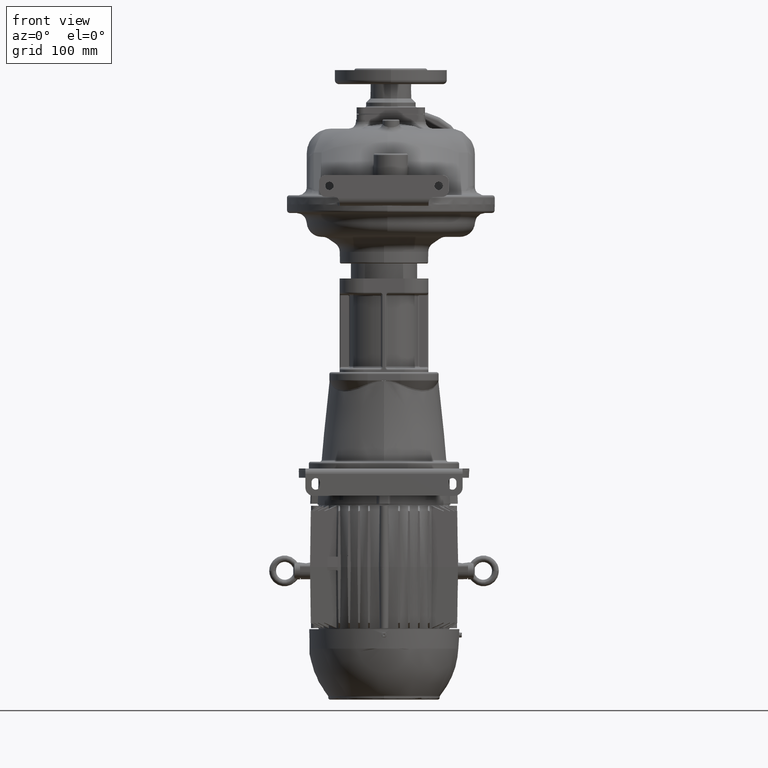
[diagram: clean part render]
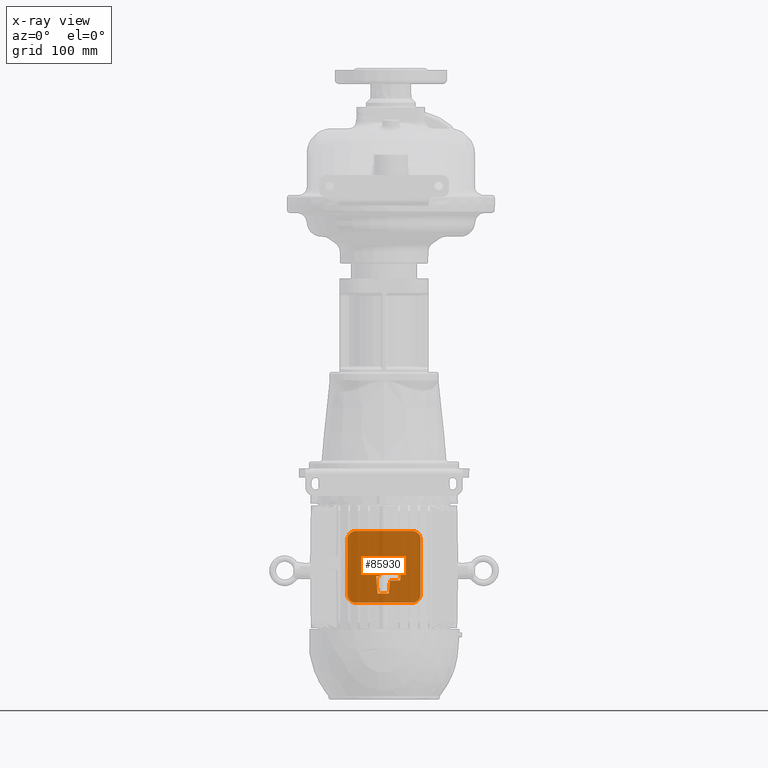
[diagram: x-ray — body ghosted, one internal face saturated and labeled with its STEP entity id]
A machine part, front view, then the same camera in x-ray: the body is ghosted and one INTERNAL B-rep face — a face not visible from any outside direction — is saturated and labeled: STEP entity #85930.
In plain terms, the highlighted planar face has unit normal (0, -1, 0).
Its self-contained STEP definition (entity closure, byte-faithful):
#18251=CARTESIAN_POINT('',(-4.15E1,1.12E2,-4.9355E2));
#18252=DIRECTION('',(0.E0,-1.E0,0.E0));
#18253=DIRECTION('',(0.E0,0.E0,1.E0));
#18254=AXIS2_PLACEMENT_3D('',#18251,#18252,#18253);
#18256=CARTESIAN_POINT('',(4.15E1,1.12E2,-4.9355E2));
#18257=DIRECTION('',(0.E0,-1.E0,0.E0));
#18258=DIRECTION('',(1.E0,0.E0,0.E0));
#18259=AXIS2_PLACEMENT_3D('',#18256,#18257,#18258);
#18261=CARTESIAN_POINT('',(4.15E1,1.12E2,-5.7455E2));
#18262=DIRECTION('',(0.E0,-1.E0,0.E0));
#18263=DIRECTION('',(6.750155989721E-14,0.E0,-1.E0));
#18264=AXIS2_PLACEMENT_3D('',#18261,#18262,#18263);
#18266=CARTESIAN_POINT('',(-4.15E1,1.12E2,-5.7455E2));
#18267=DIRECTION('',(0.E0,-1.E0,0.E0));
#18268=DIRECTION('',(-1.E0,0.E0,6.631732200428E-14));
#18269=AXIS2_PLACEMENT_3D('',#18266,#18267,#18268);
#18271=DIRECTION('',(1.E0,0.E0,-2.320139545340E-14));
#18272=VECTOR('',#18271,2.449999999999E1);
#18273=CARTESIAN_POINT('',(1.451595131531E-11,1.12E2,-5.3405E2));
#18274=LINE('',#18273,#18272);
#18275=CARTESIAN_POINT('',(-1.448838364315E-14,1.12E2,-5.4005E2));
#18276=DIRECTION('',(0.E0,1.E0,0.E0));
#18277=DIRECTION('',(-9.946737670064E-1,0.E0,1.030732614664E-1));
#18278=AXIS2_PLACEMENT_3D('',#18275,#18276,#18277);
#18280=DIRECTION('',(1.030732614664E-1,0.E0,9.946737670064E-1));
#18281=VECTOR('',#18280,8.179011117119E0);
#18282=CARTESIAN_POINT('',(-6.811079953450E0,1.12E2,-5.475670082295E2));
#18283=LINE('',#18282,#18281);
#18284=DIRECTION('',(1.E0,0.E0,0.E0));
#18285=VECTOR('',#18284,4.764166065420E0);
#18286=CARTESIAN_POINT('',(-1.157524601887E1,1.12E2,-5.475670082295E2));
#18287=LINE('',#18286,#18285);
#18288=DIRECTION('',(-8.715574274765E-2,0.E0,9.961946980917E-1));
#18289=VECTOR('',#18288,2.558033265923E1);
#18290=CARTESIAN_POINT('',(-9.345773126223E0,1.12E2,-5.7305E2));
#18291=LINE('',#18290,#18289);
#18292=DIRECTION('',(1.E0,0.E0,0.E0));
#18293=VECTOR('',#18292,1.634577312622E1);
#18294=CARTESIAN_POINT('',(-9.345773126223E0,1.12E2,-5.7305E2));
#18295=LINE('',#18294,#18293);
#18296=DIRECTION('',(-8.715574274766E-2,0.E0,-9.961946980917E-1));
#18297=VECTOR('',#18296,1.907257691332E1);
#18298=CARTESIAN_POINT('',(8.662284606993E0,1.12E2,-5.5405E2));
#18299=LINE('',#18298,#18297);
#18300=DIRECTION('',(-1.E0,0.E0,0.E0));
#18301=VECTOR('',#18300,1.496449653484E1);
#18302=CARTESIAN_POINT('',(2.362678114183E1,1.12E2,-5.5405E2));
#18303=LINE('',#18302,#18301);
#18304=DIRECTION('',(-4.361938736534E-2,0.E0,-9.990482215819E-1));
#18305=VECTOR('',#18304,2.001905370327E1);
#18306=CARTESIAN_POINT('',(2.45E1,1.12E2,-5.3405E2));
#18307=LINE('',#18306,#18305);
#22573=DIRECTION('',(0.E0,0.E0,-1.E0));
#22574=VECTOR('',#22573,8.1E1);
#22575=CARTESIAN_POINT('',(5.35E1,1.12E2,-4.9355E2));
#22576=LINE('',#22575,#22574);
#22594=DIRECTION('',(-1.E0,0.E0,0.E0));
#22595=VECTOR('',#22594,8.3E1);
#22596=CARTESIAN_POINT('',(4.15E1,1.12E2,-5.8655E2));
#22597=LINE('',#22596,#22595);
#22615=DIRECTION('',(0.E0,0.E0,1.E0));
#22616=VECTOR('',#22615,8.1E1);
#22617=CARTESIAN_POINT('',(-5.35E1,1.12E2,-5.7455E2));
#22618=LINE('',#22617,#22616);
#22623=DIRECTION('',(1.E0,0.E0,0.E0));
#22624=VECTOR('',#22623,8.3E1);
#22625=CARTESIAN_POINT('',(-4.15E1,1.12E2,-4.8155E2));
#22626=LINE('',#22625,#22624);
#54516=CARTESIAN_POINT('',(-4.15E1,1.12E2,-4.8155E2));
#54517=CARTESIAN_POINT('',(4.15E1,1.12E2,-4.8155E2));
#54518=VERTEX_POINT('',#54516);
#54519=VERTEX_POINT('',#54517);
#54520=CARTESIAN_POINT('',(-5.35E1,1.12E2,-4.9355E2));
#54521=VERTEX_POINT('',#54520);
#54522=CARTESIAN_POINT('',(-5.35E1,1.12E2,-5.7455E2));
#54523=VERTEX_POINT('',#54522);
#54524=CARTESIAN_POINT('',(-4.15E1,1.12E2,-5.8655E2));
#54525=VERTEX_POINT('',#54524);
#54526=CARTESIAN_POINT('',(4.15E1,1.12E2,-5.8655E2));
#54527=CARTESIAN_POINT('',(5.35E1,1.12E2,-5.7455E2));
#54528=VERTEX_POINT('',#54526);
#54529=VERTEX_POINT('',#54527);
#54530=CARTESIAN_POINT('',(5.35E1,1.12E2,-4.9355E2));
#54531=VERTEX_POINT('',#54530);
#60045=CARTESIAN_POINT('',(1.451595131531E-11,1.12E2,-5.3405E2));
#60046=CARTESIAN_POINT('',(2.45E1,1.12E2,-5.3405E2));
#60047=VERTEX_POINT('',#60045);
#60048=VERTEX_POINT('',#60046);
#60049=CARTESIAN_POINT('',(-6.811079953450E0,1.12E2,-5.475670082295E2));
#60050=CARTESIAN_POINT('',(-5.968042602038E0,1.12E2,-5.394315604312E2));
#60051=VERTEX_POINT('',#60049);
#60052=VERTEX_POINT('',#60050);
#60053=CARTESIAN_POINT('',(2.362678114183E1,1.12E2,-5.5405E2));
#60054=VERTEX_POINT('',#60053);
#60055=CARTESIAN_POINT('',(-9.345773126223E0,1.12E2,-5.7305E2));
#60056=CARTESIAN_POINT('',(7.E0,1.12E2,-5.7305E2));
#60057=VERTEX_POINT('',#60055);
#60058=VERTEX_POINT('',#60056);
#60059=CARTESIAN_POINT('',(8.662284606993E0,1.12E2,-5.5405E2));
#60060=VERTEX_POINT('',#60059);
#60061=CARTESIAN_POINT('',(-1.157524601887E1,1.12E2,-5.475670082295E2));
#60062=VERTEX_POINT('',#60061);
#85888=CARTESIAN_POINT('',(-4.15E1,1.12E2,-4.9355E2));
#85889=DIRECTION('',(0.E0,-1.E0,0.E0));
#85890=DIRECTION('',(1.E0,0.E0,0.E0));
#85891=AXIS2_PLACEMENT_3D('',#85888,#85889,#85890);
#85892=PLANE('',#85891);
#85894=ORIENTED_EDGE('',*,*,#85893,.F.);
#85896=ORIENTED_EDGE('',*,*,#85895,.T.);
#85898=ORIENTED_EDGE('',*,*,#85897,.F.);
#85900=ORIENTED_EDGE('',*,*,#85899,.T.);
#85902=ORIENTED_EDGE('',*,*,#85901,.F.);
#85904=ORIENTED_EDGE('',*,*,#85903,.T.);
#85906=ORIENTED_EDGE('',*,*,#85905,.F.);
#85908=ORIENTED_EDGE('',*,*,#85907,.T.);
#85909=EDGE_LOOP('',(#85894,#85896,#85898,#85900,#85902,#85904,#85906,#85908));
#85910=FACE_OUTER_BOUND('',#85909,.F.);
#85911=ORIENTED_EDGE('',*,*,#85864,.F.);
#85913=ORIENTED_EDGE('',*,*,#85912,.F.);
#85915=ORIENTED_EDGE('',*,*,#85914,.F.);
#85917=ORIENTED_EDGE('',*,*,#85916,.F.);
#85919=ORIENTED_EDGE('',*,*,#85918,.F.);
#85921=ORIENTED_EDGE('',*,*,#85920,.T.);
#85923=ORIENTED_EDGE('',*,*,#85922,.F.);
#85925=ORIENTED_EDGE('',*,*,#85924,.F.);
#85927=ORIENTED_EDGE('',*,*,#85926,.F.);
#85928=EDGE_LOOP('',(#85911,#85913,#85915,#85917,#85919,#85921,#85923,#85925,
#85927));
#85929=FACE_BOUND('',#85928,.F.);
#18255=CIRCLE('',#18254,1.2E1);
#18260=CIRCLE('',#18259,1.2E1);
#18265=CIRCLE('',#18264,1.2E1);
#18270=CIRCLE('',#18269,1.2E1);
#18279=CIRCLE('',#18278,6.E0);
#85864=EDGE_CURVE('',#60047,#60048,#18274,.T.);
#85893=EDGE_CURVE('',#54518,#54521,#18255,.T.);
#85895=EDGE_CURVE('',#54518,#54519,#22626,.T.);
#85897=EDGE_CURVE('',#54531,#54519,#18260,.T.);
#85899=EDGE_CURVE('',#54531,#54529,#22576,.T.);
#85901=EDGE_CURVE('',#54528,#54529,#18265,.T.);
#85903=EDGE_CURVE('',#54528,#54525,#22597,.T.);
#85905=EDGE_CURVE('',#54523,#54525,#18270,.T.);
#85907=EDGE_CURVE('',#54523,#54521,#22618,.T.);
#85912=EDGE_CURVE('',#60052,#60047,#18279,.T.);
#85914=EDGE_CURVE('',#60051,#60052,#18283,.T.);
#85916=EDGE_CURVE('',#60062,#60051,#18287,.T.);
#85918=EDGE_CURVE('',#60057,#60062,#18291,.T.);
#85920=EDGE_CURVE('',#60057,#60058,#18295,.T.);
#85922=EDGE_CURVE('',#60060,#60058,#18299,.T.);
#85924=EDGE_CURVE('',#60054,#60060,#18303,.T.);
#85926=EDGE_CURVE('',#60048,#60054,#18307,.T.);
#85930=ADVANCED_FACE('',(#85910,#85929),#85892,.T.);